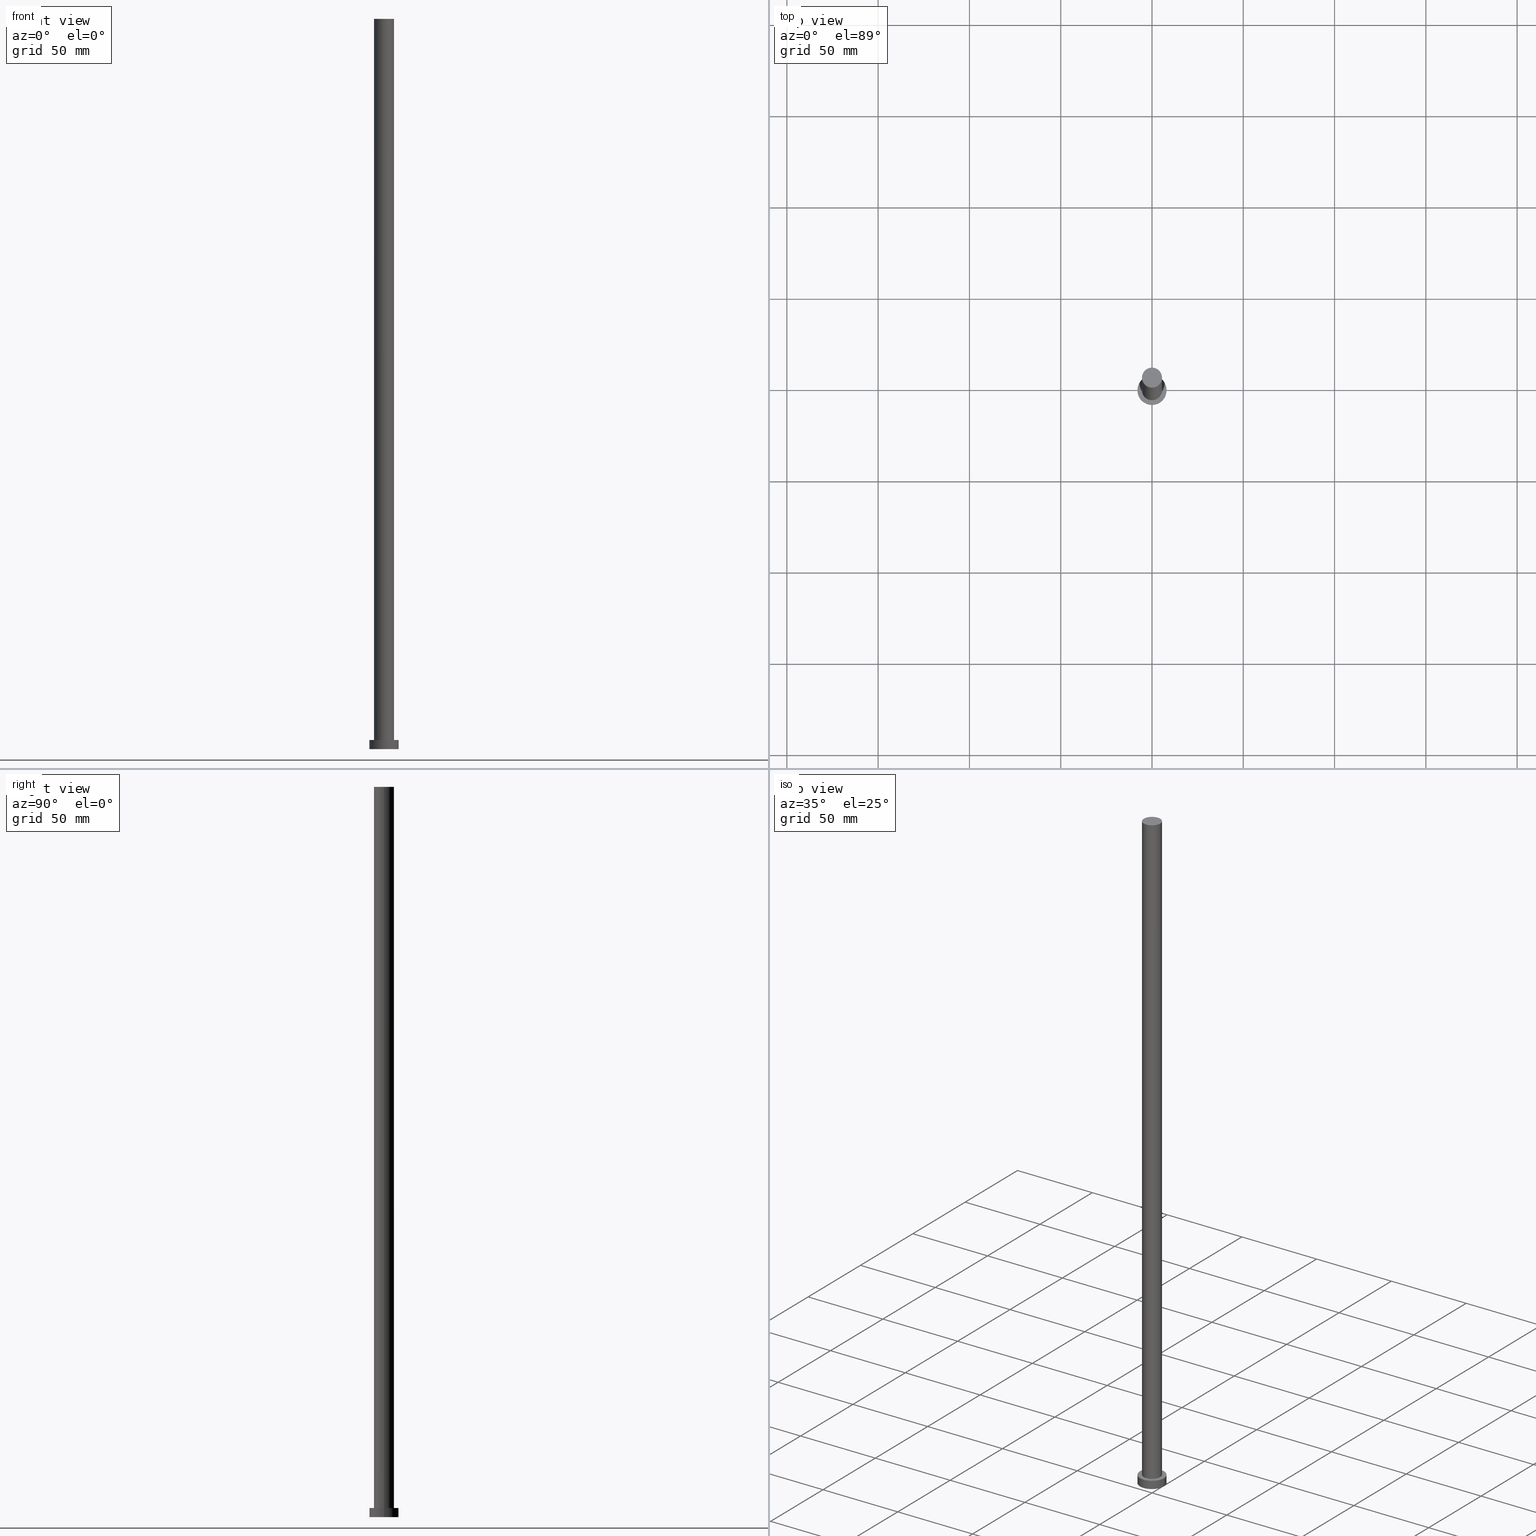
[diagram: canonical four-view strip — front | top / right | iso, engineering-drawing reading convention]
A machine part, canonical four-view strip (front | top / right | iso — engineering-drawing reading convention). The complete STEP part file that produces these views, byte-faithful:
ISO-10303-21;
HEADER;
FILE_DESCRIPTION (( 'STEP AP203' ),
    '1' );
FILE_NAME ('fca2.STEP',
    '2023-02-12T10:50:41',
    ( '' ),
    ( '' ),
    'SwSTEP 2.0',
    'SolidWorks 2019',
    '' );
FILE_SCHEMA (( 'CONFIG_CONTROL_DESIGN' ));
ENDSEC;

DATA;
#1 = CIRCLE ( 'NONE', #65, 8.000000000000000000 ) ;
#2 = DIRECTION ( 'NONE',  ( 0.000000000000000000, 0.000000000000000000, 1.000000000000000000 ) ) ;
#3 = CARTESIAN_POINT ( 'NONE',  ( 0.000000000000000000, 0.000000000000000000, 400.0000000000000000 ) ) ;
#4 = FACE_OUTER_BOUND ( 'NONE', #165, .T. ) ;
#5 = APPROVAL_ROLE ( '' ) ;
#6 = CARTESIAN_POINT ( 'NONE',  ( -8.000000000000000000, 0.000000000000000000, 5.000000000000000000 ) ) ;
#7 = DIRECTION ( 'NONE',  ( 1.000000000000000000, 0.000000000000000000, 0.000000000000000000 ) ) ;
#8 = DIRECTION ( 'NONE',  ( -1.000000000000000000, 0.000000000000000000, 0.000000000000000000 ) ) ;
#9 = AXIS2_PLACEMENT_3D ( 'NONE', #176, #131, #57 ) ;
#10 = DIRECTION ( 'NONE',  ( -0.000000000000000000, -0.000000000000000000, -1.000000000000000000 ) ) ;
#11 = LINE ( 'NONE', #94, #254 ) ;
#12 = PLANE ( 'NONE',  #199 ) ;
#13 = AXIS2_PLACEMENT_3D ( 'NONE', #44, #185, #8 ) ;
#14 = DATE_AND_TIME ( #207, #200 ) ;
#15 = CYLINDRICAL_SURFACE ( 'NONE', #54, 5.500000000000000000 ) ;
#16 = EDGE_LOOP ( 'NONE', ( #246, #87, #121, #215 ) ) ;
#17 = ADVANCED_FACE ( 'NONE', ( #4 ), #122, .T. ) ;
#18 = CIRCLE ( 'NONE', #88, 5.500000000000000000 ) ;
#19 = CARTESIAN_POINT ( 'NONE',  ( 0.000000000000000000, 0.000000000000000000, 0.000000000000000000 ) ) ;
#20 = EDGE_CURVE ( 'NONE', #120, #236, #133, .T. ) ;
#21 = COORDINATED_UNIVERSAL_TIME_OFFSET ( 1, 0, .AHEAD. ) ;
#22 = DIRECTION ( 'NONE',  ( 1.000000000000000000, 0.000000000000000000, 0.000000000000000000 ) ) ;
#23 = AXIS2_PLACEMENT_3D ( 'NONE', #3, #83, #27 ) ;
#24 = ORIENTED_EDGE ( 'NONE', *, *, #63, .F. ) ;
#25 = SECURITY_CLASSIFICATION ( '', '', #245 ) ;
#26 = PLANE ( 'NONE',  #140 ) ;
#27 = DIRECTION ( 'NONE',  ( 1.000000000000000000, 0.000000000000000000, 0.000000000000000000 ) ) ;
#28 = PRODUCT_RELATED_PRODUCT_CATEGORY ( 'detail', '', ( #60 ) ) ;
#29 = COORDINATED_UNIVERSAL_TIME_OFFSET ( 1, 0, .AHEAD. ) ;
#30 = DIRECTION ( 'NONE',  ( 1.000000000000000000, 0.000000000000000000, 0.000000000000000000 ) ) ;
#31 = SHAPE_DEFINITION_REPRESENTATION ( #158, #36 ) ;
#32 = CARTESIAN_POINT ( 'NONE',  ( 0.000000000000000000, 0.000000000000000000, 0.000000000000000000 ) ) ;
#33 = DIRECTION ( 'NONE',  ( 0.000000000000000000, 0.000000000000000000, 1.000000000000000000 ) ) ;
#34 = AXIS2_PLACEMENT_3D ( 'NONE', #182, #105, #107 ) ;
#35 = ORGANIZATION ( 'NEUR�EN�', 'NEUR�EN�', '' ) ;
#36 = ADVANCED_BREP_SHAPE_REPRESENTATION ( 'fca2', ( #159, #135 ), #235 ) ;
#37 = EDGE_LOOP ( 'NONE', ( #40, #192, #42, #221 ) ) ;
#38 = DESIGN_CONTEXT ( 'detailed design', #102, 'design' ) ;
#39 = CIRCLE ( 'NONE', #222, 8.000000000000000000 ) ;
#40 = ORIENTED_EDGE ( 'NONE', *, *, #104, .F. ) ;
#41 = EDGE_CURVE ( 'NONE', #236, #120, #101, .T. ) ;
#42 = ORIENTED_EDGE ( 'NONE', *, *, #41, .T. ) ;
#43 =( NAMED_UNIT ( * ) PLANE_ANGLE_UNIT ( ) SI_UNIT ( $, .RADIAN. ) );
#44 = CARTESIAN_POINT ( 'NONE',  ( 0.000000000000000000, 0.000000000000000000, 400.0000000000000000 ) ) ;
#45 = CALENDAR_DATE ( 2023, 12, 2 ) ;
#46 = DIRECTION ( 'NONE',  ( -1.000000000000000000, 0.000000000000000000, 0.000000000000000000 ) ) ;
#47 = PERSON_AND_ORGANIZATION ( #93, #35 ) ;
#48 = CC_DESIGN_PERSON_AND_ORGANIZATION_ASSIGNMENT ( #124, #81, ( #82 ) ) ;
#49 = EDGE_LOOP ( 'NONE', ( #71, #144 ) ) ;
#50 = DATE_AND_TIME ( #45, #70 ) ;
#51 = DIRECTION ( 'NONE',  ( -0.000000000000000000, -0.000000000000000000, -1.000000000000000000 ) ) ;
#52 = DIRECTION ( 'NONE',  ( 0.000000000000000000, 0.000000000000000000, 1.000000000000000000 ) ) ;
#53 = LOCAL_TIME ( 11, 50, 41.00000000000000000, #86 ) ;
#54 = AXIS2_PLACEMENT_3D ( 'NONE', #153, #74, #209 ) ;
#55 = APPROVAL ( #227, 'NEUR�EN�' ) ;
#56 = CARTESIAN_POINT ( 'NONE',  ( 0.000000000000000000, 0.000000000000000000, 0.000000000000000000 ) ) ;
#57 = DIRECTION ( 'NONE',  ( 1.000000000000000000, 0.000000000000000000, 0.000000000000000000 ) ) ;
#58 = COORDINATED_UNIVERSAL_TIME_OFFSET ( 1, 0, .AHEAD. ) ;
#59 = ADVANCED_FACE ( 'NONE', ( #179 ), #26, .F. ) ;
#60 = PRODUCT ( 'fca2', 'fca2', '', ( #181 ) ) ;
#61 = APPROVAL_PERSON_ORGANIZATION ( #134, #206, #230 ) ;
#62 = APPLICATION_CONTEXT ( 'configuration controlled 3d designs of mechanical parts and assemblies' ) ;
#63 = EDGE_CURVE ( 'NONE', #72, #198, #202, .T. ) ;
#64 = EDGE_LOOP ( 'NONE', ( #242, #162 ) ) ;
#65 = AXIS2_PLACEMENT_3D ( 'NONE', #174, #249, #152 ) ;
#66 = ORIENTED_EDGE ( 'NONE', *, *, #85, .T. ) ;
#67 = PERSON_AND_ORGANIZATION ( #93, #35 ) ;
#68 = DIRECTION ( 'NONE',  ( 0.000000000000000000, 0.000000000000000000, 1.000000000000000000 ) ) ;
#69 = APPROVAL ( #73, 'NEUR�EN�' ) ;
#70 = LOCAL_TIME ( 11, 50, 41.00000000000000000, #21 ) ;
#71 = ORIENTED_EDGE ( 'NONE', *, *, #20, .F. ) ;
#72 = VERTEX_POINT ( 'NONE', #169 ) ;
#73 = APPROVAL_STATUS ( 'not_yet_approved' ) ;
#74 = DIRECTION ( 'NONE',  ( -0.000000000000000000, -0.000000000000000000, -1.000000000000000000 ) ) ;
#75 = CC_DESIGN_PERSON_AND_ORGANIZATION_ASSIGNMENT ( #201, #110, ( #82 ) ) ;
#76 = DATE_TIME_ROLE ( 'classification_date' ) ;
#77 = CARTESIAN_POINT ( 'NONE',  ( -5.500000000000000000, 0.000000000000000000, 400.0000000000000000 ) ) ;
#78 = CARTESIAN_POINT ( 'NONE',  ( 8.000000000000000000, 9.797174393178825657E-16, 5.000000000000000000 ) ) ;
#79 = PRODUCT_DEFINITION ( 'NEZN�M�', '', #82, #38 ) ;
#80 = CLOSED_SHELL ( 'NONE', ( #92, #17, #119, #183, #59, #132, #157 ) ) ;
#81 = PERSON_AND_ORGANIZATION_ROLE ( 'creator' ) ;
#82 = PRODUCT_DEFINITION_FORMATION_WITH_SPECIFIED_SOURCE ( 'LIBOVOLN�', '', #60, .NOT_KNOWN. ) ;
#83 = DIRECTION ( 'NONE',  ( 0.000000000000000000, 0.000000000000000000, 1.000000000000000000 ) ) ;
#84 = ORIENTED_EDGE ( 'NONE', *, *, #112, .T. ) ;
#85 = EDGE_CURVE ( 'NONE', #214, #143, #156, .T. ) ;
#86 = COORDINATED_UNIVERSAL_TIME_OFFSET ( 1, 0, .AHEAD. ) ;
#87 = ORIENTED_EDGE ( 'NONE', *, *, #194, .F. ) ;
#88 = AXIS2_PLACEMENT_3D ( 'NONE', #171, #248, #30 ) ;
#89 = DIRECTION ( 'NONE',  ( -0.000000000000000000, -0.000000000000000000, -1.000000000000000000 ) ) ;
#90 = LOCAL_TIME ( 11, 50, 41.00000000000000000, #29 ) ;
#91 = APPLICATION_PROTOCOL_DEFINITION ( 'international standard', 'config_control_design', 1994, #102 ) ;
#92 = ADVANCED_FACE ( 'NONE', ( #240 ), #218, .T. ) ;
#93 = PERSON ( 'NEUR�EN�', 'NEUR�EN�', 'NEUR�EN�', ('NEUR�EN�'), ('NEUR�EN�'), ('NEUR�EN�') ) ;
#94 = CARTESIAN_POINT ( 'NONE',  ( 8.000000000000000000, 9.797174393178825657E-16, 5.000000000000000000 ) ) ;
#95 = DIRECTION ( 'NONE',  ( 0.000000000000000000, 0.000000000000000000, 1.000000000000000000 ) ) ;
#96 = CC_DESIGN_SECURITY_CLASSIFICATION ( #25, ( #82 ) ) ;
#97 = DIRECTION ( 'NONE',  ( 1.000000000000000000, 0.000000000000000000, -0.000000000000000000 ) ) ;
#98 = CC_DESIGN_DATE_AND_TIME_ASSIGNMENT ( #106, #184, ( #79 ) ) ;
#99 = APPROVAL_DATE_TIME ( #14, #206 ) ;
#100 = EDGE_CURVE ( 'NONE', #143, #236, #148, .T. ) ;
#101 = CIRCLE ( 'NONE', #34, 5.500000000000000000 ) ;
#102 = APPLICATION_CONTEXT ( 'configuration controlled 3d designs of mechanical parts and assemblies' ) ;
#103 = ORIENTED_EDGE ( 'NONE', *, *, #85, .F. ) ;
#104 = EDGE_CURVE ( 'NONE', #143, #214, #18, .T. ) ;
#105 = DIRECTION ( 'NONE',  ( 0.000000000000000000, 0.000000000000000000, 1.000000000000000000 ) ) ;
#106 = DATE_AND_TIME ( #220, #191 ) ;
#107 = DIRECTION ( 'NONE',  ( 1.000000000000000000, 0.000000000000000000, 0.000000000000000000 ) ) ;
#108 = EDGE_LOOP ( 'NONE', ( #217, #129 ) ) ;
#109 = DIRECTION ( 'NONE',  ( -0.000000000000000000, -0.000000000000000000, -1.000000000000000000 ) ) ;
#110 = PERSON_AND_ORGANIZATION_ROLE ( 'design_supplier' ) ;
#111 = EDGE_LOOP ( 'NONE', ( #216, #103, #84, #167 ) ) ;
#112 = EDGE_CURVE ( 'NONE', #214, #120, #252, .T. ) ;
#113 = CALENDAR_DATE ( 2023, 12, 2 ) ;
#114 = CYLINDRICAL_SURFACE ( 'NONE', #161, 8.000000000000000000 ) ;
#115 = DIRECTION ( 'NONE',  ( 1.000000000000000000, 0.000000000000000000, 0.000000000000000000 ) ) ;
#116 = CARTESIAN_POINT ( 'NONE',  ( 0.000000000000000000, 0.000000000000000000, 5.000000000000000000 ) ) ;
#117 = FACE_OUTER_BOUND ( 'NONE', #146, .T. ) ;
#118 = CC_DESIGN_PERSON_AND_ORGANIZATION_ASSIGNMENT ( #196, #247, ( #79 ) ) ;
#119 = ADVANCED_FACE ( 'NONE', ( #233 ), #114, .T. ) ;
#120 = VERTEX_POINT ( 'NONE', #231 ) ;
#121 = ORIENTED_EDGE ( 'NONE', *, *, #63, .T. ) ;
#122 = CYLINDRICAL_SURFACE ( 'NONE', #237, 8.000000000000000000 ) ;
#123 = CARTESIAN_POINT ( 'NONE',  ( 0.000000000000000000, 0.000000000000000000, 5.000000000000000000 ) ) ;
#124 = PERSON_AND_ORGANIZATION ( #93, #35 ) ;
#125 = CIRCLE ( 'NONE', #9, 8.000000000000000000 ) ;
#126 = CC_DESIGN_APPROVAL ( #206, ( #25 ) ) ;
#127 = DIRECTION ( 'NONE',  ( 1.000000000000000000, 0.000000000000000000, -0.000000000000000000 ) ) ;
#128 = APPROVAL_ROLE ( '' ) ;
#129 = ORIENTED_EDGE ( 'NONE', *, *, #219, .F. ) ;
#130 = PERSON_AND_ORGANIZATION_ROLE ( 'classification_officer' ) ;
#131 = DIRECTION ( 'NONE',  ( 0.000000000000000000, 0.000000000000000000, 1.000000000000000000 ) ) ;
#132 = ADVANCED_FACE ( 'NONE', ( #253 ), #15, .T. ) ;
#133 = CIRCLE ( 'NONE', #250, 5.500000000000000000 ) ;
#134 = PERSON_AND_ORGANIZATION ( #93, #35 ) ;
#135 = AXIS2_PLACEMENT_3D ( 'NONE', #205, #172, #7 ) ;
#136 = FACE_OUTER_BOUND ( 'NONE', #64, .T. ) ;
#137 = CARTESIAN_POINT ( 'NONE',  ( 0.000000000000000000, 0.000000000000000000, 5.000000000000000000 ) ) ;
#138 = CARTESIAN_POINT ( 'NONE',  ( 8.000000000000000000, 9.797174393178825657E-16, 0.000000000000000000 ) ) ;
#139 = VECTOR ( 'NONE', #89, 1000.000000000000000 ) ;
#140 = AXIS2_PLACEMENT_3D ( 'NONE', #19, #2, #127 ) ;
#141 = EDGE_CURVE ( 'NONE', #198, #197, #213, .T. ) ;
#142 = VECTOR ( 'NONE', #51, 1000.000000000000000 ) ;
#143 = VERTEX_POINT ( 'NONE', #186 ) ;
#144 = ORIENTED_EDGE ( 'NONE', *, *, #41, .F. ) ;
#145 = CALENDAR_DATE ( 2023, 12, 2 ) ;
#146 = EDGE_LOOP ( 'NONE', ( #66, #160 ) ) ;
#147 = APPROVAL_DATE_TIME ( #164, #55 ) ;
#148 = LINE ( 'NONE', #244, #139 ) ;
#149 = CARTESIAN_POINT ( 'NONE',  ( -5.500000000000000000, 0.000000000000000000, 400.0000000000000000 ) ) ;
#150 = DATE_AND_TIME ( #113, #90 ) ;
#151 = DIRECTION ( 'NONE',  ( 0.000000000000000000, 0.000000000000000000, 1.000000000000000000 ) ) ;
#152 = DIRECTION ( 'NONE',  ( 1.000000000000000000, 0.000000000000000000, 0.000000000000000000 ) ) ;
#153 = CARTESIAN_POINT ( 'NONE',  ( 0.000000000000000000, 0.000000000000000000, 400.0000000000000000 ) ) ;
#154 = CARTESIAN_POINT ( 'NONE',  ( 0.000000000000000000, 0.000000000000000000, 400.0000000000000000 ) ) ;
#155 = APPROVAL_STATUS ( 'not_yet_approved' ) ;
#156 = CIRCLE ( 'NONE', #23, 5.500000000000000000 ) ;
#157 = ADVANCED_FACE ( 'NONE', ( #117 ), #228, .T. ) ;
#158 = PRODUCT_DEFINITION_SHAPE ( 'NONE', 'NONE',  #79 ) ;
#159 = MANIFOLD_SOLID_BREP ( 'P�idat vysunut�m3', #80 ) ;
#160 = ORIENTED_EDGE ( 'NONE', *, *, #104, .T. ) ;
#161 = AXIS2_PLACEMENT_3D ( 'NONE', #116, #10, #173 ) ;
#162 = ORIENTED_EDGE ( 'NONE', *, *, #255, .T. ) ;
#163 = APPROVAL_PERSON_ORGANIZATION ( #241, #55, #5 ) ;
#164 = DATE_AND_TIME ( #145, #53 ) ;
#165 = EDGE_LOOP ( 'NONE', ( #180, #193, #195, #24 ) ) ;
#166 = PERSON_AND_ORGANIZATION_ROLE ( 'design_owner' ) ;
#167 = ORIENTED_EDGE ( 'NONE', *, *, #20, .T. ) ;
#168 = PERSON_AND_ORGANIZATION ( #93, #35 ) ;
#169 = CARTESIAN_POINT ( 'NONE',  ( -8.000000000000000000, 0.000000000000000000, 5.000000000000000000 ) ) ;
#170 = APPLICATION_PROTOCOL_DEFINITION ( 'international standard', 'config_control_design', 1994, #62 ) ;
#171 = CARTESIAN_POINT ( 'NONE',  ( 0.000000000000000000, 0.000000000000000000, 400.0000000000000000 ) ) ;
#172 = DIRECTION ( 'NONE',  ( 0.000000000000000000, 0.000000000000000000, 1.000000000000000000 ) ) ;
#173 = DIRECTION ( 'NONE',  ( -1.000000000000000000, 0.000000000000000000, 0.000000000000000000 ) ) ;
#174 = CARTESIAN_POINT ( 'NONE',  ( 0.000000000000000000, 0.000000000000000000, 5.000000000000000000 ) ) ;
#175 = CC_DESIGN_APPROVAL ( #69, ( #82 ) ) ;
#176 = CARTESIAN_POINT ( 'NONE',  ( 0.000000000000000000, 0.000000000000000000, 5.000000000000000000 ) ) ;
#177 = CC_DESIGN_APPROVAL ( #55, ( #79 ) ) ;
#178 = DIRECTION ( 'NONE',  ( -0.000000000000000000, -0.000000000000000000, -1.000000000000000000 ) ) ;
#179 = FACE_OUTER_BOUND ( 'NONE', #108, .T. ) ;
#180 = ORIENTED_EDGE ( 'NONE', *, *, #255, .F. ) ;
#181 = MECHANICAL_CONTEXT ( 'NONE', #62, 'mechanical' ) ;
#182 = CARTESIAN_POINT ( 'NONE',  ( 0.000000000000000000, 0.000000000000000000, 5.000000000000000000 ) ) ;
#183 = ADVANCED_FACE ( 'NONE', ( #187, #136 ), #12, .T. ) ;
#184 = DATE_TIME_ROLE ( 'creation_date' ) ;
#185 = DIRECTION ( 'NONE',  ( -0.000000000000000000, -0.000000000000000000, -1.000000000000000000 ) ) ;
#186 = CARTESIAN_POINT ( 'NONE',  ( 5.500000000000000000, 6.735557395310441037E-16, 400.0000000000000000 ) ) ;
#187 = FACE_BOUND ( 'NONE', #49, .T. ) ;
#188 = UNCERTAINTY_MEASURE_WITH_UNIT (LENGTH_MEASURE( 1.000000000000000082E-05 ), #203, 'distance_accuracy_value', 'NONE');
#189 = DIRECTION ( 'NONE',  ( 1.000000000000000000, 0.000000000000000000, 0.000000000000000000 ) ) ;
#190 = CARTESIAN_POINT ( 'NONE',  ( 5.500000000000000000, 6.735557395310441037E-16, 5.000000000000000000 ) ) ;
#191 = LOCAL_TIME ( 11, 50, 41.00000000000000000, #243 ) ;
#192 = ORIENTED_EDGE ( 'NONE', *, *, #100, .T. ) ;
#193 = ORIENTED_EDGE ( 'NONE', *, *, #232, .T. ) ;
#194 = EDGE_CURVE ( 'NONE', #72, #238, #125, .T. ) ;
#195 = ORIENTED_EDGE ( 'NONE', *, *, #219, .T. ) ;
#196 = PERSON_AND_ORGANIZATION ( #93, #35 ) ;
#197 = VERTEX_POINT ( 'NONE', #138 ) ;
#198 = VERTEX_POINT ( 'NONE', #210 ) ;
#199 = AXIS2_PLACEMENT_3D ( 'NONE', #137, #95, #97 ) ;
#200 = LOCAL_TIME ( 11, 50, 41.00000000000000000, #58 ) ;
#201 = PERSON_AND_ORGANIZATION ( #93, #35 ) ;
#202 = LINE ( 'NONE', #6, #211 ) ;
#203 =( LENGTH_UNIT ( ) NAMED_UNIT ( * ) SI_UNIT ( .MILLI., .METRE. ) );
#204 = CARTESIAN_POINT ( 'NONE',  ( 0.000000000000000000, 0.000000000000000000, 5.000000000000000000 ) ) ;
#205 = CARTESIAN_POINT ( 'NONE',  ( 0.000000000000000000, 0.000000000000000000, 0.000000000000000000 ) ) ;
#206 = APPROVAL ( #155, 'NEUR�EN�' ) ;
#207 = CALENDAR_DATE ( 2023, 12, 2 ) ;
#208 = DIRECTION ( 'NONE',  ( 1.000000000000000000, 0.000000000000000000, -0.000000000000000000 ) ) ;
#209 = DIRECTION ( 'NONE',  ( -1.000000000000000000, 0.000000000000000000, 0.000000000000000000 ) ) ;
#210 = CARTESIAN_POINT ( 'NONE',  ( -8.000000000000000000, 0.000000000000000000, 0.000000000000000000 ) ) ;
#211 = VECTOR ( 'NONE', #178, 1000.000000000000000 ) ;
#212 = CC_DESIGN_PERSON_AND_ORGANIZATION_ASSIGNMENT ( #67, #166, ( #60 ) ) ;
#213 = CIRCLE ( 'NONE', #251, 8.000000000000000000 ) ;
#214 = VERTEX_POINT ( 'NONE', #149 ) ;
#215 = ORIENTED_EDGE ( 'NONE', *, *, #141, .T. ) ;
#216 = ORIENTED_EDGE ( 'NONE', *, *, #100, .F. ) ;
#217 = ORIENTED_EDGE ( 'NONE', *, *, #141, .F. ) ;
#218 = CYLINDRICAL_SURFACE ( 'NONE', #13, 5.500000000000000000 ) ;
#219 = EDGE_CURVE ( 'NONE', #197, #198, #39, .T. ) ;
#220 = CALENDAR_DATE ( 2023, 12, 2 ) ;
#221 = ORIENTED_EDGE ( 'NONE', *, *, #112, .F. ) ;
#222 = AXIS2_PLACEMENT_3D ( 'NONE', #32, #33, #115 ) ;
#223 =( NAMED_UNIT ( * ) SI_UNIT ( $, .STERADIAN. ) SOLID_ANGLE_UNIT ( ) );
#224 = APPROVAL_DATE_TIME ( #50, #69 ) ;
#225 = DIRECTION ( 'NONE',  ( -0.000000000000000000, -0.000000000000000000, -1.000000000000000000 ) ) ;
#226 = CC_DESIGN_DATE_AND_TIME_ASSIGNMENT ( #150, #76, ( #25 ) ) ;
#227 = APPROVAL_STATUS ( 'not_yet_approved' ) ;
#228 = PLANE ( 'NONE',  #239 ) ;
#229 = APPROVAL_PERSON_ORGANIZATION ( #47, #69, #128 ) ;
#230 = APPROVAL_ROLE ( '' ) ;
#231 = CARTESIAN_POINT ( 'NONE',  ( -5.500000000000000000, 0.000000000000000000, 5.000000000000000000 ) ) ;
#232 = EDGE_CURVE ( 'NONE', #238, #197, #11, .T. ) ;
#233 = FACE_OUTER_BOUND ( 'NONE', #16, .T. ) ;
#234 = CC_DESIGN_PERSON_AND_ORGANIZATION_ASSIGNMENT ( #168, #130, ( #25 ) ) ;
#235 =( GEOMETRIC_REPRESENTATION_CONTEXT ( 3 ) GLOBAL_UNCERTAINTY_ASSIGNED_CONTEXT ( ( #188 ) ) GLOBAL_UNIT_ASSIGNED_CONTEXT ( ( #203, #43, #223 ) ) REPRESENTATION_CONTEXT ( 'NONE', 'WORKASPACE' ) );
#236 = VERTEX_POINT ( 'NONE', #190 ) ;
#237 = AXIS2_PLACEMENT_3D ( 'NONE', #204, #109, #46 ) ;
#238 = VERTEX_POINT ( 'NONE', #78 ) ;
#239 = AXIS2_PLACEMENT_3D ( 'NONE', #154, #52, #208 ) ;
#240 = FACE_OUTER_BOUND ( 'NONE', #37, .T. ) ;
#241 = PERSON_AND_ORGANIZATION ( #93, #35 ) ;
#242 = ORIENTED_EDGE ( 'NONE', *, *, #194, .T. ) ;
#243 = COORDINATED_UNIVERSAL_TIME_OFFSET ( 1, 0, .AHEAD. ) ;
#244 = CARTESIAN_POINT ( 'NONE',  ( 5.500000000000000000, 6.735557395310441037E-16, 400.0000000000000000 ) ) ;
#245 = SECURITY_CLASSIFICATION_LEVEL ( 'unclassified' ) ;
#246 = ORIENTED_EDGE ( 'NONE', *, *, #232, .F. ) ;
#247 = PERSON_AND_ORGANIZATION_ROLE ( 'creator' ) ;
#248 = DIRECTION ( 'NONE',  ( 0.000000000000000000, 0.000000000000000000, 1.000000000000000000 ) ) ;
#249 = DIRECTION ( 'NONE',  ( 0.000000000000000000, 0.000000000000000000, 1.000000000000000000 ) ) ;
#250 = AXIS2_PLACEMENT_3D ( 'NONE', #123, #68, #22 ) ;
#251 = AXIS2_PLACEMENT_3D ( 'NONE', #56, #151, #189 ) ;
#252 = LINE ( 'NONE', #77, #142 ) ;
#253 = FACE_OUTER_BOUND ( 'NONE', #111, .T. ) ;
#254 = VECTOR ( 'NONE', #225, 1000.000000000000000 ) ;
#255 = EDGE_CURVE ( 'NONE', #238, #72, #1, .T. ) ;
ENDSEC;
END-ISO-10303-21;
